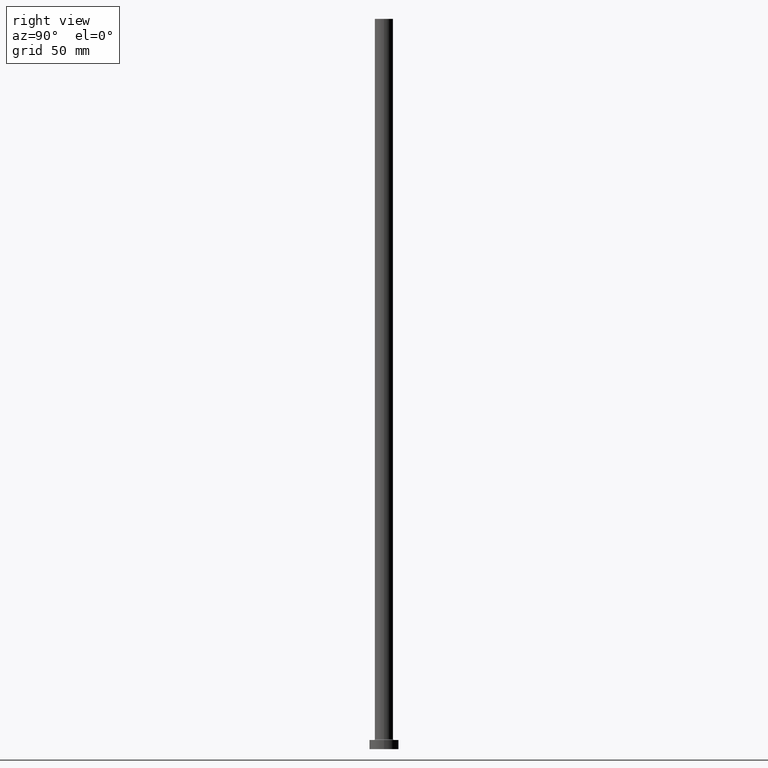
[diagram: clean part render]
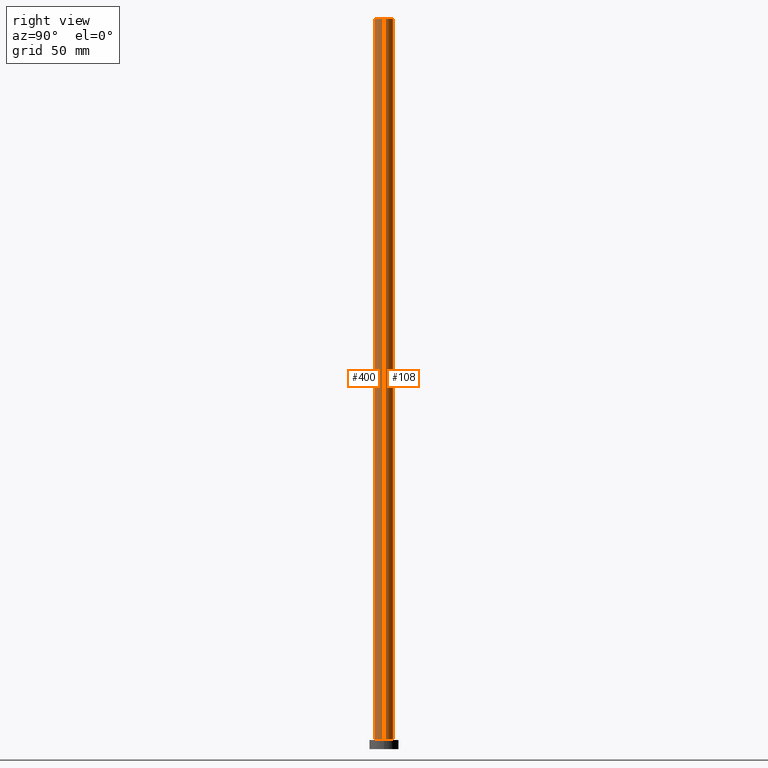
[diagram: same view with one multi-face feature highlighted, each face labeled with its STEP entity id]
A machine part, right view. The highlighted faces form ONE feature: a constant-radius fillet chain: 2 tangent blend faces with common blend radius 5 mm. The faces share edges in the B-rep.
Their STEP definitions:
[1] entity #108 (Cylinder):
#2 = AXIS2_PLACEMENT_3D ( 'NONE', #354, #359, #35 ) ;
#6 = CARTESIAN_POINT ( 'NONE',  ( -5.000000000000000000, 0.000000000000000000, 400.0000000000000000 ) ) ;
#27 = DIRECTION ( 'NONE',  ( -0.000000000000000000, -0.000000000000000000, -1.000000000000000000 ) ) ;
#35 = DIRECTION ( 'NONE',  ( 1.000000000000000000, 0.000000000000000000, 0.000000000000000000 ) ) ;
#36 = DIRECTION ( 'NONE',  ( -1.000000000000000000, 0.000000000000000000, 0.000000000000000000 ) ) ;
#37 = EDGE_CURVE ( 'NONE', #374, #275, #232, .T. ) ;
#41 = CARTESIAN_POINT ( 'NONE',  ( 0.000000000000000000, 0.000000000000000000, 400.0000000000000000 ) ) ;
#65 = LINE ( 'NONE', #174, #386 ) ;
#81 = DIRECTION ( 'NONE',  ( -0.000000000000000000, -0.000000000000000000, -1.000000000000000000 ) ) ;
#97 = VERTEX_POINT ( 'NONE', #281 ) ;
#108 = ADVANCED_FACE ( 'NONE', ( #457 ), #314, .T. ) ;
#127 = AXIS2_PLACEMENT_3D ( 'NONE', #427, #27, #36 ) ;
#142 = EDGE_CURVE ( 'NONE', #154, #97, #65, .T. ) ;
#154 = VERTEX_POINT ( 'NONE', #168 ) ;
#156 = AXIS2_PLACEMENT_3D ( 'NONE', #41, #428, #326 ) ;
#157 = ORIENTED_EDGE ( 'NONE', *, *, #364, .T. ) ;
#163 = ORIENTED_EDGE ( 'NONE', *, *, #142, .T. ) ;
#168 = CARTESIAN_POINT ( 'NONE',  ( 5.000000000000000000, 6.123233995736765296E-16, 400.0000000000000000 ) ) ;
#174 = CARTESIAN_POINT ( 'NONE',  ( 5.000000000000000000, 6.123233995736765296E-16, 400.0000000000000000 ) ) ;
#175 = CIRCLE ( 'NONE', #156, 5.000000000000000000 ) ;
#192 = CARTESIAN_POINT ( 'NONE',  ( -5.000000000000000000, 0.000000000000000000, 400.0000000000000000 ) ) ;
#193 = EDGE_LOOP ( 'NONE', ( #387, #163, #157, #413 ) ) ;
#203 = CARTESIAN_POINT ( 'NONE',  ( -5.000000000000000000, 0.000000000000000000, 5.500000000000005329 ) ) ;
#204 = DIRECTION ( 'NONE',  ( -0.000000000000000000, -0.000000000000000000, -1.000000000000000000 ) ) ;
#232 = LINE ( 'NONE', #192, #453 ) ;
#275 = VERTEX_POINT ( 'NONE', #203 ) ;
#281 = CARTESIAN_POINT ( 'NONE',  ( 5.000000000000000000, 6.123233995736765296E-16, 5.500000000000005329 ) ) ;
#284 = CIRCLE ( 'NONE', #2, 5.000000000000000000 ) ;
#314 = CYLINDRICAL_SURFACE ( 'NONE', #127, 5.000000000000000000 ) ;
#326 = DIRECTION ( 'NONE',  ( 1.000000000000000000, 0.000000000000000000, 0.000000000000000000 ) ) ;
#354 = CARTESIAN_POINT ( 'NONE',  ( 0.000000000000000000, 0.000000000000000000, 5.500000000000005329 ) ) ;
#359 = DIRECTION ( 'NONE',  ( 0.000000000000000000, 0.000000000000000000, 1.000000000000000000 ) ) ;
#361 = EDGE_CURVE ( 'NONE', #154, #374, #175, .T. ) ;
#364 = EDGE_CURVE ( 'NONE', #97, #275, #284, .T. ) ;
#374 = VERTEX_POINT ( 'NONE', #6 ) ;
#386 = VECTOR ( 'NONE', #204, 1000.000000000000000 ) ;
#387 = ORIENTED_EDGE ( 'NONE', *, *, #361, .F. ) ;
#413 = ORIENTED_EDGE ( 'NONE', *, *, #37, .F. ) ;
#427 = CARTESIAN_POINT ( 'NONE',  ( 0.000000000000000000, 0.000000000000000000, 400.0000000000000000 ) ) ;
#428 = DIRECTION ( 'NONE',  ( 0.000000000000000000, 0.000000000000000000, 1.000000000000000000 ) ) ;
#453 = VECTOR ( 'NONE', #81, 1000.000000000000000 ) ;
#457 = FACE_OUTER_BOUND ( 'NONE', #193, .T. ) ;
[2] entity #400 (Cylinder):
#6 = CARTESIAN_POINT ( 'NONE',  ( -5.000000000000000000, 0.000000000000000000, 400.0000000000000000 ) ) ;
#18 = EDGE_CURVE ( 'NONE', #275, #97, #455, .T. ) ;
#20 = ORIENTED_EDGE ( 'NONE', *, *, #18, .T. ) ;
#37 = EDGE_CURVE ( 'NONE', #374, #275, #232, .T. ) ;
#39 = DIRECTION ( 'NONE',  ( -0.000000000000000000, -0.000000000000000000, -1.000000000000000000 ) ) ;
#54 = DIRECTION ( 'NONE',  ( 1.000000000000000000, 0.000000000000000000, 0.000000000000000000 ) ) ;
#65 = LINE ( 'NONE', #174, #386 ) ;
#81 = DIRECTION ( 'NONE',  ( -0.000000000000000000, -0.000000000000000000, -1.000000000000000000 ) ) ;
#97 = VERTEX_POINT ( 'NONE', #281 ) ;
#103 = CARTESIAN_POINT ( 'NONE',  ( 0.000000000000000000, 0.000000000000000000, 400.0000000000000000 ) ) ;
#121 = CARTESIAN_POINT ( 'NONE',  ( 0.000000000000000000, 0.000000000000000000, 5.500000000000005329 ) ) ;
#141 = CARTESIAN_POINT ( 'NONE',  ( 0.000000000000000000, 0.000000000000000000, 400.0000000000000000 ) ) ;
#142 = EDGE_CURVE ( 'NONE', #154, #97, #65, .T. ) ;
#144 = CIRCLE ( 'NONE', #197, 5.000000000000000000 ) ;
#154 = VERTEX_POINT ( 'NONE', #168 ) ;
#160 = ORIENTED_EDGE ( 'NONE', *, *, #37, .T. ) ;
#168 = CARTESIAN_POINT ( 'NONE',  ( 5.000000000000000000, 6.123233995736765296E-16, 400.0000000000000000 ) ) ;
#174 = CARTESIAN_POINT ( 'NONE',  ( 5.000000000000000000, 6.123233995736765296E-16, 400.0000000000000000 ) ) ;
#176 = CYLINDRICAL_SURFACE ( 'NONE', #320, 5.000000000000000000 ) ;
#192 = CARTESIAN_POINT ( 'NONE',  ( -5.000000000000000000, 0.000000000000000000, 400.0000000000000000 ) ) ;
#197 = AXIS2_PLACEMENT_3D ( 'NONE', #103, #322, #208 ) ;
#203 = CARTESIAN_POINT ( 'NONE',  ( -5.000000000000000000, 0.000000000000000000, 5.500000000000005329 ) ) ;
#204 = DIRECTION ( 'NONE',  ( -0.000000000000000000, -0.000000000000000000, -1.000000000000000000 ) ) ;
#208 = DIRECTION ( 'NONE',  ( 1.000000000000000000, 0.000000000000000000, 0.000000000000000000 ) ) ;
#232 = LINE ( 'NONE', #192, #453 ) ;
#270 = DIRECTION ( 'NONE',  ( 0.000000000000000000, 0.000000000000000000, 1.000000000000000000 ) ) ;
#275 = VERTEX_POINT ( 'NONE', #203 ) ;
#281 = CARTESIAN_POINT ( 'NONE',  ( 5.000000000000000000, 6.123233995736765296E-16, 5.500000000000005329 ) ) ;
#286 = FACE_OUTER_BOUND ( 'NONE', #304, .T. ) ;
#304 = EDGE_LOOP ( 'NONE', ( #342, #460, #160, #20 ) ) ;
#309 = AXIS2_PLACEMENT_3D ( 'NONE', #121, #270, #54 ) ;
#320 = AXIS2_PLACEMENT_3D ( 'NONE', #141, #39, #433 ) ;
#322 = DIRECTION ( 'NONE',  ( 0.000000000000000000, 0.000000000000000000, 1.000000000000000000 ) ) ;
#342 = ORIENTED_EDGE ( 'NONE', *, *, #142, .F. ) ;
#374 = VERTEX_POINT ( 'NONE', #6 ) ;
#386 = VECTOR ( 'NONE', #204, 1000.000000000000000 ) ;
#400 = ADVANCED_FACE ( 'NONE', ( #286 ), #176, .T. ) ;
#408 = EDGE_CURVE ( 'NONE', #374, #154, #144, .T. ) ;
#433 = DIRECTION ( 'NONE',  ( -1.000000000000000000, 0.000000000000000000, 0.000000000000000000 ) ) ;
#453 = VECTOR ( 'NONE', #81, 1000.000000000000000 ) ;
#455 = CIRCLE ( 'NONE', #309, 5.000000000000000000 ) ;
#460 = ORIENTED_EDGE ( 'NONE', *, *, #408, .F. ) ;